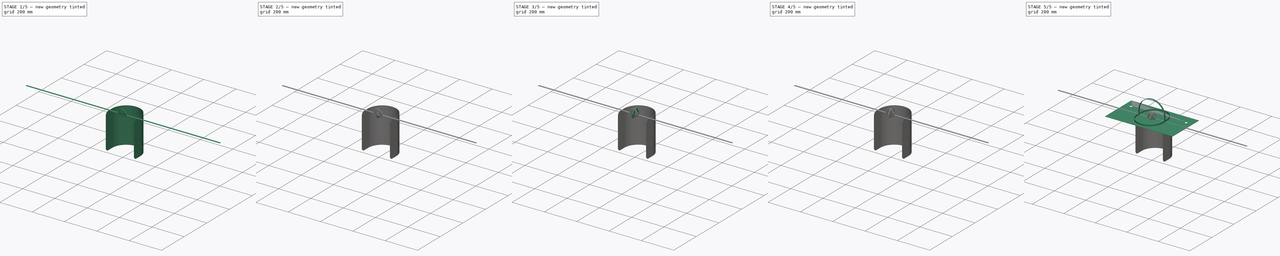
[diagram: build sequence overview — one tinted view per stage of 5, left to right]
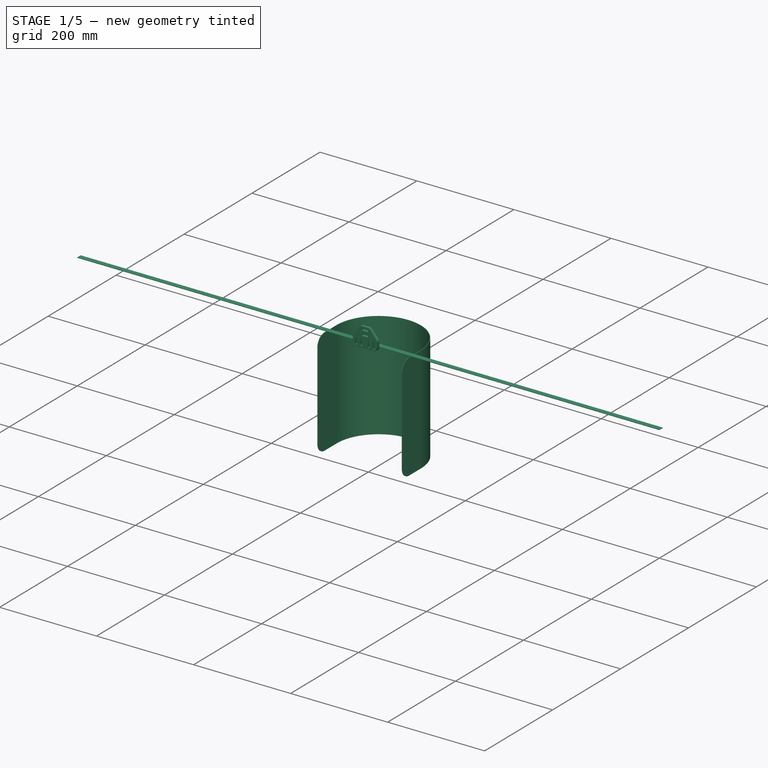
[diagram: stage 1 of 5 — iso view after this stage's code; geometry added in this stage tinted green]
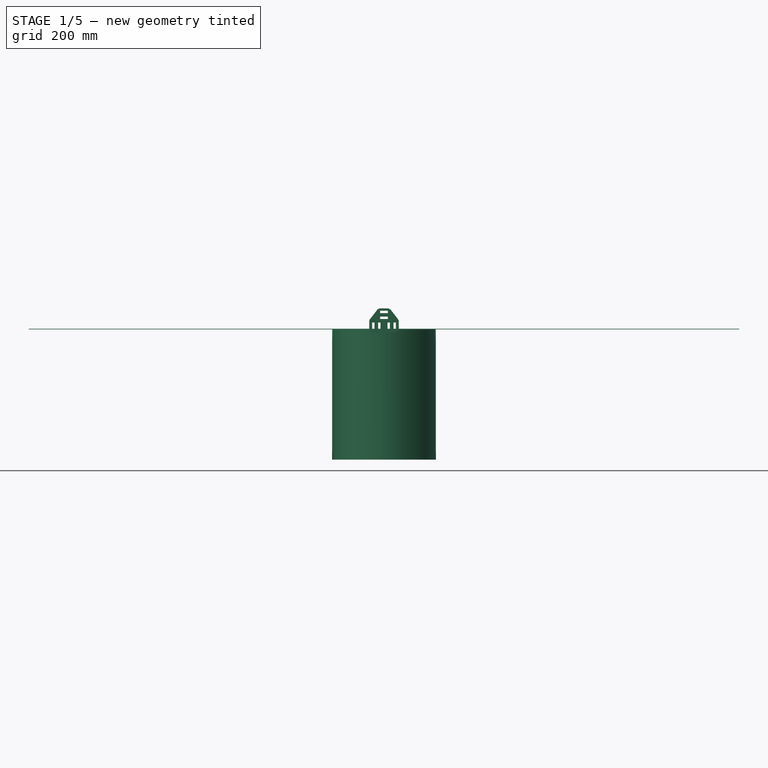
[diagram: stage 1 of 5 — front view after this stage's code; geometry added in this stage tinted green]
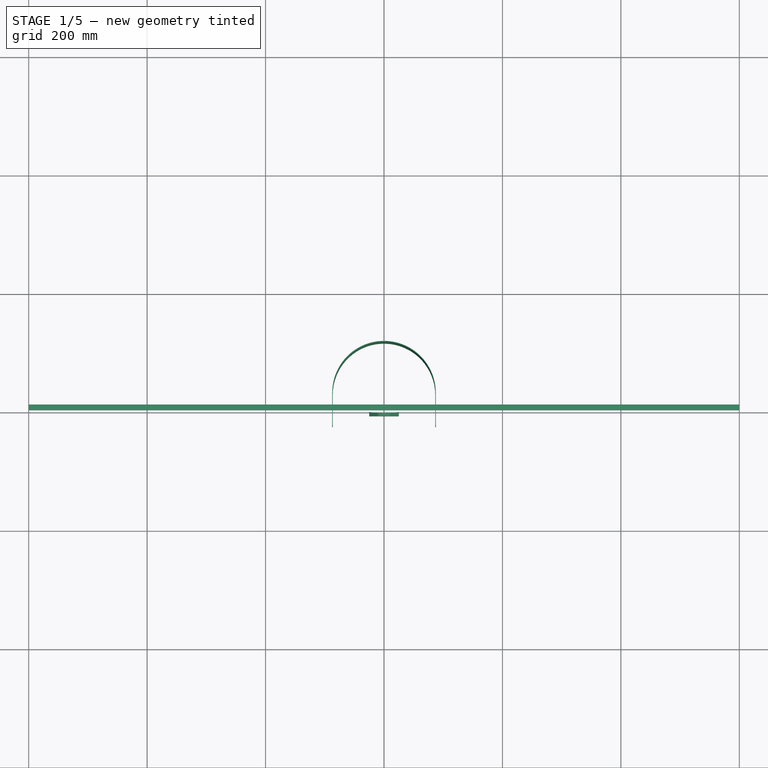
[diagram: stage 1 of 5 — top view after this stage's code; geometry added in this stage tinted green]
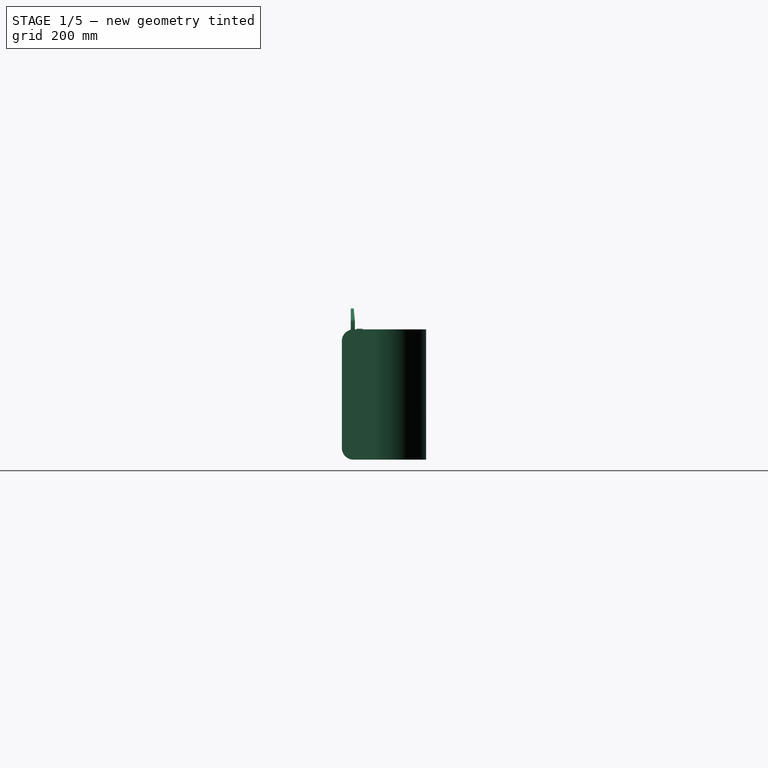
[diagram: stage 1 of 5 — right view after this stage's code; geometry added in this stage tinted green]
FCSTD DOCUMENT  (FreeCAD 0.18.4R)
Label: 3DVisera
License: All rights reserved
LicenseURL: http://en.wikipedia.org/wiki/All_rights_reserved
objects: Sketcher::SketchObject×20, PartDesign::Fillet×12, PartDesign::Pocket×9, PartDesign::Pad×8, PartDesign::Body×7, PartDesign::Revolution×1, PartDesign::Groove×1, PartDesign::Mirrored×1
note: 78 computed .brp shape members not serialized (recipe doc carries the construction recipe); baked Part::Feature solids carry a one-line shape summary decoded from their .brp

FEATURE [Sketcher::SketchObject] Sketch003
  MapMode = 5
  Support = -> [XY_Plane001]
  sketch-geometry (15):
    g0: LineSegment StartX=-86.5 StartY=0 StartZ=0 EndX=-86.5 EndY=30 EndZ=0
    g1: LineSegment [constr] StartX=-86.5 StartY=30 StartZ=0 EndX=86.5 EndY=30 EndZ=0
    g2: LineSegment StartX=86.5 StartY=30 StartZ=0 EndX=86.5 EndY=0 EndZ=0
    g3: LineSegment [constr] StartX=86.5 StartY=0 StartZ=0 EndX=87.5 EndY=8.62794e-06 EndZ=0
    g4: LineSegment StartX=87.5 StartY=8.62794e-06 StartZ=0 EndX=87.5 EndY=30 EndZ=0
    g5: LineSegment [constr] StartX=-86.5 StartY=0 StartZ=0 EndX=-87.5 EndY=0 EndZ=0
    g6: LineSegment StartX=-87.5 StartY=0 StartZ=0 EndX=-87.5 EndY=30 EndZ=0
    g7: ArcOfCircle CenterX=-5.6e-15 CenterY=30 CenterZ=0 NormalX=0 NormalY=0 NormalZ=1 AngleXU=0 Radius=86.5 StartAngle=0 EndAngle=3.14159
    g8: ArcOfCircle CenterX=-5.6e-15 CenterY=30 CenterZ=0 NormalX=0 NormalY=0 NormalZ=1 AngleXU=0 Radius=87.5 StartAngle=9.86051e-08 EndAngle=3.14159
    g9: LineSegment StartX=-87.5 StartY=0 StartZ=0 EndX=-87.5 EndY=-25 EndZ=0
    g10: LineSegment StartX=-87.5 StartY=-25 StartZ=0 EndX=-86.5 EndY=-25 EndZ=0
    g11: LineSegment StartX=-86.5 StartY=-25 StartZ=0 EndX=-86.5 EndY=0 EndZ=0
    g12: LineSegment StartX=86.5 StartY=0 StartZ=0 EndX=86.5 EndY=-25 EndZ=0
    g13: LineSegment StartX=86.5 StartY=-25 StartZ=0 EndX=87.5 EndY=-25 EndZ=0
    g14: LineSegment StartX=87.5 StartY=-25 StartZ=0 EndX=87.5 EndY=8.62794e-06 EndZ=0
  constraints (41):
    c: PointOnObject(g0,g-1)
    c: Vertical(g0)
    c: Coincident(g0,g1)
    c: Coincident(g1,g2)
    c: Coincident(g2,g3)
    c: Coincident(g3,g4)
    c: Vertical(g4)
    c: Coincident(g0,g5)
    c: PointOnObject(g5,g-1)
    c: Coincident(g5,g6)
    c: Vertical(g6)
    c: Symmetric(g0,g2,g-2)
    c: Symmetric(g2,g0,g-2)
    c: DistanceX(g5,g5) = 1
    c: Equal(g3,g5)
    c: Equal(g4,g2)
    c: Equal(g6,g0)
    c: Coincident(g8,g4)
    c: Coincident(g8,g6)
    c: Coincident(g8,g7)
    c: DistanceY(g4) = 30
    c: Coincident(g6,g9)
    c: Vertical(g9)
    c: Coincident(g9,g10)
    c: Horizontal(g10)
    c: Coincident(g10,g11)
    c: Coincident(g11,g0)
    c: Vertical(g11)
    c: Coincident(g2,g12)
    c: Vertical(g12)
    c: Coincident(g12,g13)
    c: Horizontal(g13)
    c: Coincident(g13,g14)
    c: Coincident(g14,g4)
    c: Vertical(g14)
    c: Equal(g14,g9)
    c: DistanceY(g14,g14) = 25
    c: DistanceX(g12) = 86.5
    c: Distance(g6,g4) = 175
    c: Tangent(g7,g0) = 1.5708
    c: Coincident(g2,g7)
FEATURE [PartDesign::Pad] Pad003
  Length = 220
  Length2 = 100
  Profile = -> Sketch003
  Reversed = true
  Type = 0
FEATURE [PartDesign::Body] Body010  label="Tuerca_Visera"
  Group = -> [Sketch031,Revolution,Sketch032,Pocket011,Sketch033,Pocket012,Sketch034,Groove001003,Fillet008,Sketch047,Pocket017,Fillet013,Fillet014]
  Origin = -> Origin010
  Placement = pos=(93,0,10) rot=(0,0,1;0rad)
  Tip = -> Fillet014
FEATURE [Sketcher::SketchObject] Sketch054
  MapMode = 5
  Placement = pos=(0,0,0) rot=(1,0,0;1.5708rad)
  Support = -> [XZ_Plane016]
  sketch-geometry (31):
    g0: LineSegment StartX=-20 StartY=11.5 StartZ=0 EndX=-16 EndY=11.5 EndZ=0
    g1: LineSegment StartX=-16 StartY=11.5 StartZ=0 EndX=-16 EndY=-1.5 EndZ=0
    g2: LineSegment StartX=-16 StartY=-1.5 StartZ=0 EndX=-20 EndY=-1.5 EndZ=0
    g3: LineSegment StartX=-20 StartY=-1.5 StartZ=0 EndX=-20 EndY=11.5 EndZ=0
    g4: LineSegment StartX=-10 StartY=-1.5 StartZ=0 EndX=-6 EndY=-1.5 EndZ=0
    g5: LineSegment StartX=-6 StartY=-1.5 StartZ=0 EndX=-6 EndY=11.5 EndZ=0
    g6: LineSegment StartX=-6 StartY=11.5 StartZ=0 EndX=-10 EndY=11.5 EndZ=0
    g7: LineSegment StartX=-10 StartY=11.5 StartZ=0 EndX=-10 EndY=-1.5 EndZ=0
    g8: LineSegment StartX=6 StartY=-1.5 StartZ=0 EndX=10 EndY=-1.5 EndZ=0
    g9: LineSegment StartX=10 StartY=-1.5 StartZ=0 EndX=10 EndY=11.5 EndZ=0
    g10: LineSegment StartX=10 StartY=11.5 StartZ=0 EndX=6 EndY=11.5 EndZ=0
    g11: LineSegment StartX=6 StartY=11.5 StartZ=0 EndX=6 EndY=-1.5 EndZ=0
    g12: LineSegment StartX=16 StartY=-1.5 StartZ=0 EndX=20 EndY=-1.5 EndZ=0
    g13: LineSegment StartX=20 StartY=-1.5 StartZ=0 EndX=20 EndY=11.5 EndZ=0
    g14: LineSegment StartX=20 StartY=11.5 StartZ=0 EndX=16 EndY=11.5 EndZ=0
    g15: LineSegment StartX=16 StartY=11.5 StartZ=0 EndX=16 EndY=-1.5 EndZ=0
    g16: LineSegment StartX=-6.5 StartY=17.5 StartZ=0 EndX=6.5 EndY=17.5 EndZ=0
    g17: LineSegment StartX=6.5 StartY=17.5 StartZ=0 EndX=6.5 EndY=21.5 EndZ=0
    g18: LineSegment StartX=6.5 StartY=21.5 StartZ=0 EndX=-6.5 EndY=21.5 EndZ=0
    g19: LineSegment StartX=-6.5 StartY=21.5 StartZ=0 EndX=-6.5 EndY=17.5 EndZ=0
    g20: LineSegment StartX=-6.5 StartY=27.5 StartZ=0 EndX=6.5 EndY=27.5 EndZ=0
    g21: LineSegment StartX=6.5 StartY=27.5 StartZ=0 EndX=6.5 EndY=31.5 EndZ=0
    g22: LineSegment StartX=6.5 StartY=31.5 StartZ=0 EndX=-6.5 EndY=31.5 EndZ=0
    g23: LineSegment StartX=-6.5 StartY=31.5 StartZ=0 EndX=-6.5 EndY=27.5 EndZ=0
    g24: LineSegment [constr] StartX=-39.4607 StartY=5 StartZ=0 EndX=48.8437 EndY=5 EndZ=0
    g25: LineSegment StartX=-25 StartY=15.5 StartZ=0 EndX=-9.5 EndY=35.5 EndZ=0
    g26: LineSegment StartX=-9.5 StartY=35.5 StartZ=0 EndX=9.5 EndY=35.5 EndZ=0
    g27: LineSegment StartX=9.5 StartY=35.5 StartZ=0 EndX=25 EndY=15.5 EndZ=0
    g28: LineSegment StartX=25 StartY=15.5 StartZ=0 EndX=25 EndY=-5.5 EndZ=0
    g29: LineSegment StartX=25 StartY=-5.5 StartZ=0 EndX=-25 EndY=-5.5 EndZ=0
    g30: LineSegment StartX=-25 StartY=-5.5 StartZ=0 EndX=-25 EndY=15.5 EndZ=0
  constraints (82):
    c: Coincident(g0,g1)
    c: Coincident(g1,g2)
    c: Coincident(g2,g3)
    c: Coincident(g3,g0)
    c: Horizontal(g0)
    c: Horizontal(g2)
    c: Vertical(g1)
    c: Vertical(g3)
    c: Coincident(g4,g5)
    c: Coincident(g5,g6)
    c: Coincident(g6,g7)
    c: Coincident(g7,g4)
    c: Horizontal(g4)
    c: Horizontal(g6)
    c: Vertical(g7)
    c: Coincident(g8,g9)
    c: Coincident(g9,g10)
    c: Coincident(g10,g11)
    c: Coincident(g11,g8)
    c: Horizontal(g8)
    c: Vertical(g11)
    c: Coincident(g12,g13)
    c: Coincident(g13,g14)
    c: Coincident(g14,g15)
    c: Coincident(g15,g12)
    c: Horizontal(g12)
    c: Vertical(g15)
    c: Coincident(g16,g17)
    c: Coincident(g17,g18)
    c: Coincident(g18,g19)
    c: Coincident(g19,g16)
    c: Horizontal(g18)
    c: Vertical(g17)
    c: Vertical(g19)
    c: Coincident(g20,g21)
    c: Coincident(g21,g22)
    c: Coincident(g22,g23)
    c: Coincident(g23,g20)
    c: Horizontal(g22)
    c: Vertical(g21)
    c: Vertical(g23)
    c: Equal(g15,g9)
    c: Equal(g9,g5)
    c: Equal(g5,g1)
    c: Equal(g16,g20)
    c: Equal(g20,g9)
    c: DistanceY(g24) = 5
    c: Symmetric(g12,g13,g24)
    c: Symmetric(g9,g8,g24)
    c: Symmetric(g4,g5,g24)
    c: Symmetric(g0,g1,g24)
    c: Symmetric(g16,g16,g-2)
    c: Symmetric(g20,g20,g-2)
    c: Equal(g23,g19)
    c: Equal(g19,g0)
    c: Equal(g0,g6)
    c: Equal(g6,g10)
    c: Equal(g10,g14)
    c: DistanceX(g14,g14) = 4
    c: Symmetric(g10,g5,g-2)
    c: Symmetric(g14,g0,g-2)
    c: DistanceX(g10) = 6
    c: DistanceX(g9,g14) = 6
    c: DistanceY(g13,g13) = 13
    c: DistanceY(g17,g20) = 6
    c: DistanceY(g10,g16) = 6
    c: Coincident(g25,g26)
    c: Coincident(g26,g27)
    c: Coincident(g27,g28)
    c: Vertical(g28)
    c: Coincident(g28,g29)
    c: Horizontal(g29)
    c: Coincident(g29,g30)
    c: Vertical(g30)
    c: Coincident(g25,g30)
    c: Symmetric(g25,g27,g-2)
    c: DistanceX(g13,g27) = 5
    c: DistanceY(g13,g27) = 4
    c: Symmetric(g26,g25,g-2)
    c: DistanceY(g21,g26) = 4
    c: DistanceX(g21,g26) = 3
    c: DistanceY(g28,g12) = 4
FEATURE [PartDesign::Pad] Pad019
  Length = 10
  Length2 = 100
  Placement = pos=(0,0,0) rot=(1,0,0;1.5708rad)
  Profile = -> Sketch054
  Type = 0
FEATURE [Sketcher::SketchObject] Sketch055
  MapMode = 5
  Placement = pos=(0,1.56e-14,35.5) rot=(0,0,1;3.14159rad)
  Support = -> [Pad019]
  sketch-geometry (2):
    g0: Circle CenterX=0 CenterY=-145 CenterZ=0 NormalX=0 NormalY=0 NormalZ=1 AngleXU=0 Radius=150
    g1: LineSegment [constr] StartX=-36.6681 StartY=5 StartZ=0 EndX=40.7279 EndY=5 EndZ=0
  constraints (5):
    c: PointOnObject(g0,g-2)
    c: Radius(g0) = 150
    c: Horizontal(g1)
    c: Tangent(g1,g0)
    c: DistanceY(g1) = 5
FEATURE [PartDesign::Pocket] Pocket023
  BaseFeature = -> Pad019
  Length = 5
  Length2 = 100
  Placement = pos=(0,0,0) rot=(1,0,0;1.5708rad)
  Profile = -> Sketch055
  Type = 1
FEATURE [PartDesign::Fillet] Fillet020  label="Fillet021"
  Base = -> Pocket023 [Edge34,Edge2,Edge65,Edge66,Edge64,Edge4]
  BaseFeature = -> Pocket023
  Placement = pos=(0,0,0) rot=(1,0,0;1.5708rad)
  Radius = 8
FEATURE [Sketcher::SketchObject] Sketch056
  ExternalGeometry = -> [Fillet022]
  MapMode = 5
  Placement = pos=(0,-10,2.2e-15) rot=(1,0,0;1.5708rad)
  Support = -> [Fillet022]
  sketch-geometry (2):
    g0: Circle CenterX=38.9284 CenterY=42.2335 CenterZ=0 NormalX=0 NormalY=0 NormalZ=1 AngleXU=0 Radius=28.6336
    g1: Circle CenterX=-38.9284 CenterY=42.2335 CenterZ=0 NormalX=0 NormalY=0 NormalZ=1 AngleXU=0 Radius=32.7625
  constraints (1):
    c: Symmetric(g1,g0,g-2)
FEATURE [PartDesign::Body] Body015  label="hebilla_nuca_cinta"
  Group = -> [Sketch054,Pad019,Sketch055,Pocket023,Fillet020,Fillet021,Fillet022,Sketch056]
  Origin = -> Origin015
  Placement = pos=(0,-95.8,0) rot=(0,0,1;0rad)
  Tip = -> Fillet022
FEATURE [PartDesign::Fillet] Fillet
  Base = -> Pad003 [Edge24,Edge6,Edge7,Edge25]
  BaseFeature = -> Pad003
  Radius = 20
FEATURE [PartDesign::Body] Body001  label="visera"
  Group = -> [Sketch003,Pad003,Fillet]
  Origin = -> Origin001
  Placement = pos=(0,0,42) rot=(0,0,1;0rad)
  Tip = -> Fillet
FEATURE [Sketcher::SketchObject] Sketch057
  MapMode = 5
  Support = -> [XY_Plane016]
  sketch-geometry (4):
    g0: LineSegment StartX=-600 StartY=0 StartZ=0 EndX=600 EndY=0 EndZ=0
    g1: LineSegment StartX=600 StartY=0 StartZ=0 EndX=600 EndY=10 EndZ=0
    g2: LineSegment StartX=600 StartY=10 StartZ=0 EndX=-600 EndY=10 EndZ=0
    g3: LineSegment StartX=-600 StartY=10 StartZ=0 EndX=-600 EndY=0 EndZ=0
  constraints (11):
    c: Coincident(g0,g1)
    c: Coincident(g1,g2)
    c: Coincident(g2,g3)
    c: Coincident(g3,g0)
    c: Horizontal(g0)
    c: Vertical(g1)
    c: Vertical(g3)
    c: PointOnObject(g0,g-1)
    c: DistanceY(g1,g1) = 10
    c: Symmetric(g1,g2,g-2)
    c: DistanceX(g2,g2) = 1200
FEATURE [PartDesign::Pad] Pad020
  Length = 1
  Length2 = 100
  Profile = -> Sketch057
  Type = 0
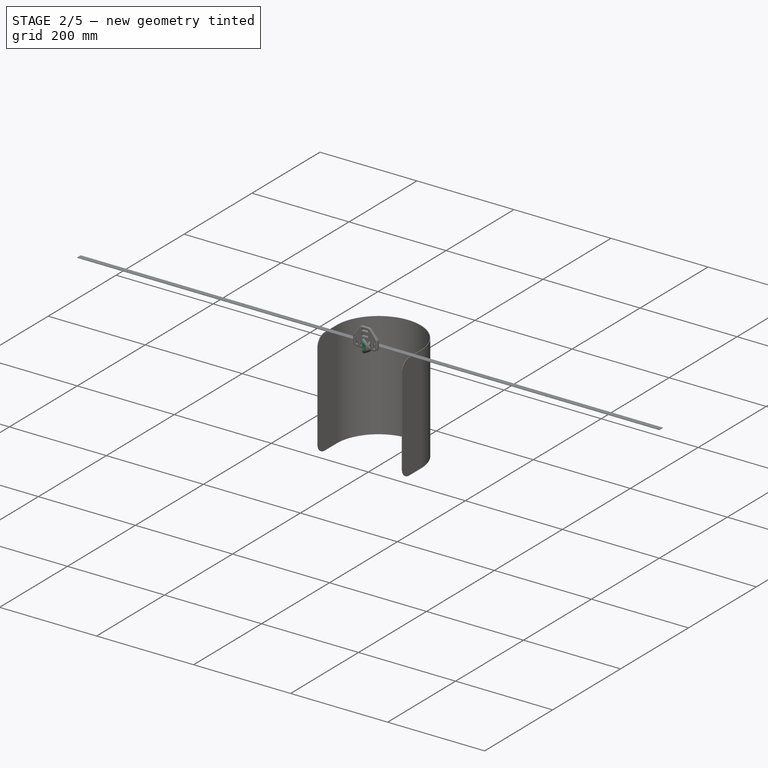
[diagram: stage 2 of 5 — iso view after this stage's code; geometry added in this stage tinted green]
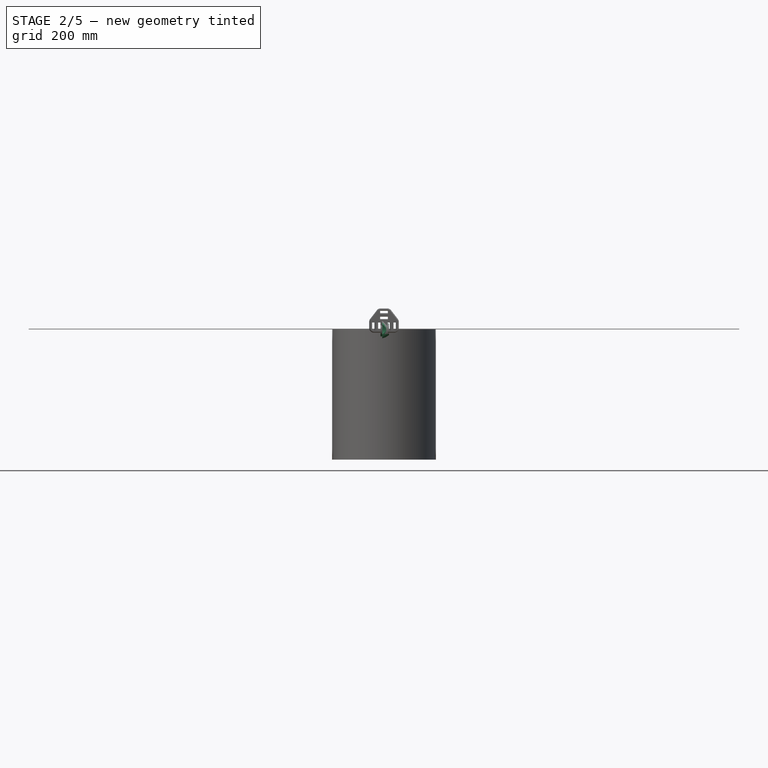
[diagram: stage 2 of 5 — front view after this stage's code; geometry added in this stage tinted green]
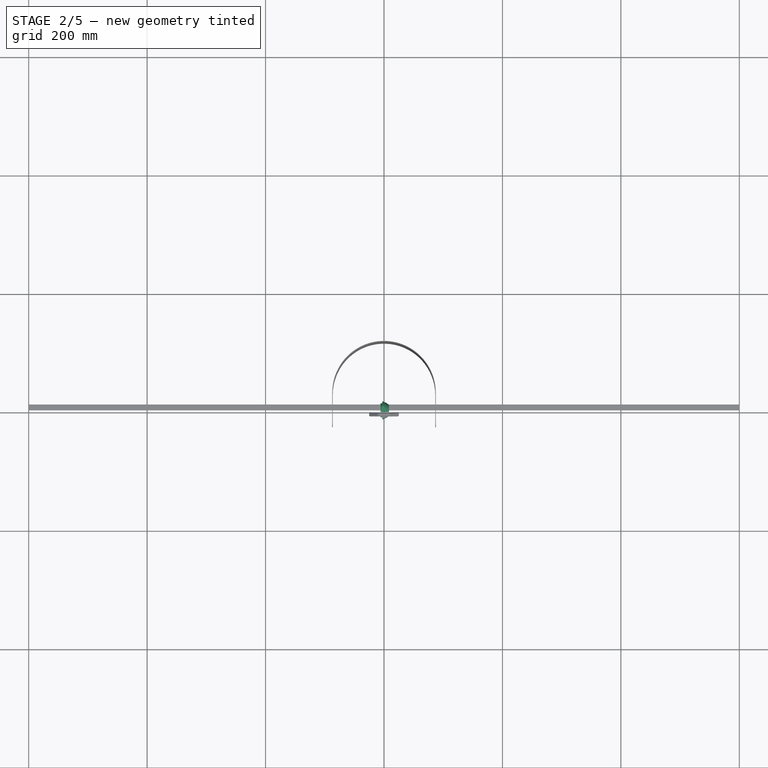
[diagram: stage 2 of 5 — top view after this stage's code; geometry added in this stage tinted green]
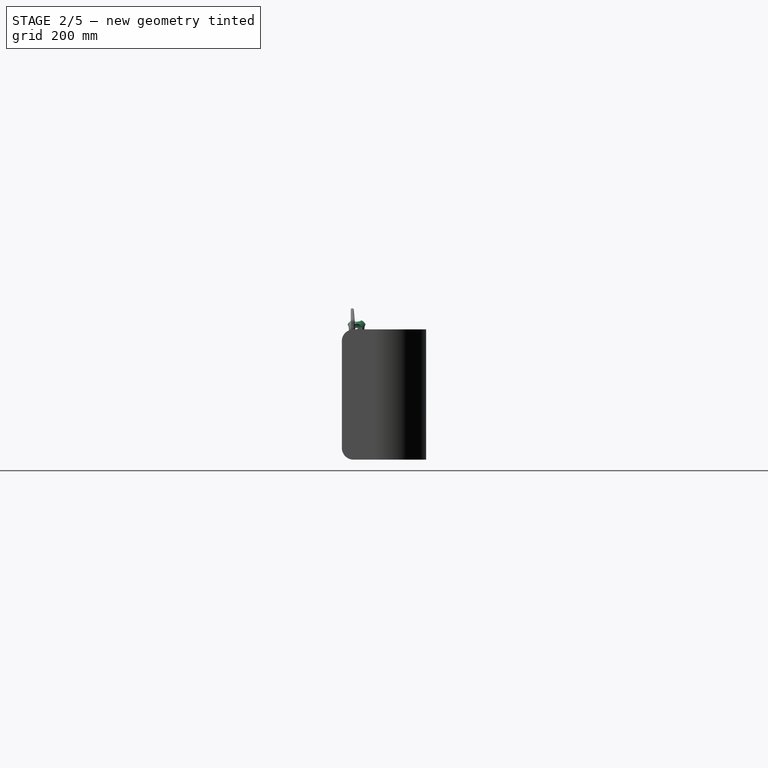
[diagram: stage 2 of 5 — right view after this stage's code; geometry added in this stage tinted green]
FEATURE [Sketcher::SketchObject] Sketch025
  MapMode = 5
  Placement = pos=(0,0,0) rot=(0.57735,0.57735,0.57735;2.0944rad)
  Support = -> [YZ_Plane009]
  sketch-geometry (10):
    g0: LineSegment [constr] StartX=-70.2533 StartY=5 StartZ=0 EndX=70.2533 EndY=5 EndZ=0
    g1: LineSegment [constr] StartX=70.2533 StartY=5 StartZ=0 EndX=70.2533 EndY=-5 EndZ=0
    g2: LineSegment [constr] StartX=70.2533 StartY=-5 StartZ=0 EndX=-70.2533 EndY=-5 EndZ=0
    g3: LineSegment [constr] StartX=-70.2533 StartY=-5 StartZ=0 EndX=-70.2533 EndY=5 EndZ=0
    g4: LineSegment StartX=-27.5 StartY=-10 StartZ=0 EndX=-27.5 EndY=10 EndZ=0
    g5: LineSegment StartX=-27.5 StartY=10 StartZ=0 EndX=-9 EndY=35 EndZ=0
    g6: LineSegment StartX=-9 StartY=35 StartZ=0 EndX=9 EndY=35 EndZ=0
    g7: LineSegment StartX=9 StartY=35 StartZ=0 EndX=27.5 EndY=10 EndZ=0
    g8: LineSegment StartX=27.5 StartY=10 StartZ=0 EndX=27.5 EndY=-10 EndZ=0
    g9: LineSegment StartX=27.5 StartY=-10 StartZ=0 EndX=-27.5 EndY=-10 EndZ=0
  constraints (24):
    c: Coincident(g0,g1)
    c: Coincident(g1,g2)
    c: Coincident(g2,g3)
    c: Coincident(g3,g0)
    c: Horizontal(g0)
    c: Vertical(g3)
    c: Symmetric(g1,g0,g-1)
    c: DistanceY(g1,g1) = 10
    c: Symmetric(g1,g2,g-2)
    c: Vertical(g4)
    c: Coincident(g8,g9)
    c: Horizontal(g9)
    c: Coincident(g4,g9)
    c: Symmetric(g8,g4,g-2)
    c: Symmetric(g6,g6,g-2)
    c: Symmetric(g7,g5,g-2)
    c: DistanceY(g8,g8) = 20
    c: DistanceX(g6,g6) = 18
    c: DistanceX(g9,g9) = 55
    c: DistanceY(g6) = 35
    c: Symmetric(g8,g8,g-1)
    c: Coincident(g7,g8)
    c: Coincident(g5,g4)
    c: Coincident(g7,g6)
FEATURE [PartDesign::Pad] Pad009
  Length = 6
  Length2 = 100
  Placement = pos=(0,0,0) rot=(0.57735,0.57735,0.57735;2.0944rad)
  Profile = -> Sketch025
  Type = 0
FEATURE [Sketcher::SketchObject] Sketch031
  MapMode = 5
  Placement = pos=(0,0,0) rot=(1,0,0;1.5708rad)
  Support = -> [XZ_Plane011]
  sketch-geometry (10):
    g0: LineSegment StartX=0 StartY=2.6 StartZ=0 EndX=0 EndY=6.8 EndZ=0
    g1: LineSegment StartX=0 StartY=6.8 StartZ=0 EndX=-6 EndY=6.8 EndZ=0
    g2: LineSegment StartX=-6 StartY=6.8 StartZ=0 EndX=-6 EndY=11.8 EndZ=0
    g3: LineSegment StartX=-6 StartY=11.8 StartZ=0 EndX=-3 EndY=11.8 EndZ=0
    g4: LineSegment StartX=-3 StartY=11.8 StartZ=0 EndX=-3 EndY=18 EndZ=0
    g5: LineSegment StartX=-3 StartY=18 StartZ=0 EndX=9 EndY=18 EndZ=0
    g6: LineSegment StartX=9 StartY=18 StartZ=0 EndX=9 EndY=10 EndZ=0
    g7: LineSegment StartX=9 StartY=10 StartZ=0 EndX=6 EndY=7 EndZ=0
    g8: LineSegment StartX=6 StartY=7 StartZ=0 EndX=6 EndY=2.6 EndZ=0
    g9: LineSegment StartX=6 StartY=2.6 StartZ=0 EndX=0 EndY=2.6 EndZ=0
  constraints (30):
    c: PointOnObject(g0,g-2)
    c: Vertical(g0)
    c: Coincident(g0,g1)
    c: Coincident(g1,g2)
    c: Vertical(g2)
    c: Coincident(g2,g3)
    c: Horizontal(g3)
    c: Coincident(g3,g4)
    c: Coincident(g4,g5)
    c: Horizontal(g5)
    c: Coincident(g5,g6)
    c: Coincident(g6,g7)
    c: Coincident(g7,g8)
    c: Vertical(g8)
    c: Coincident(g8,g9)
    c: Coincident(g9,g0)
    c: Horizontal(g9)
    c: DistanceY(g8) = 2.6
    c: DistanceX(g1,g1) = 6
    c: Horizontal(g1)
    c: DistanceY(g2,g2) = 5
    c: DistanceX(g3,g3) = 3
    c: DistanceY(g4) = 18
    c: Vertical(g6)
    c: Angle(g7) = -2.35619
    c: DistanceX(g9,g9) = 6
    c: DistanceY(g6,g6) = 8
    c: DistanceY(g0) = 6.8
    c: DistanceX(g5) = 9
    c: Vertical(g4)
FEATURE [PartDesign::Revolution] Revolution
  Angle = 360
  Axis = (1,0,0)
  Base = (0,0,0)
  Placement = pos=(0,0,0) rot=(1,0,0;1.5708rad)
  Profile = -> Sketch031
  ReferenceAxis = -> Sketch031 [H_Axis]
FEATURE [Sketcher::SketchObject] Sketch032
  ExternalGeometry = -> [Revolution]
  MapMode = 5
  Placement = pos=(9,0,0) rot=(0.707107,0,0.707107;3.14159rad)
  Support = -> [Revolution]
  sketch-geometry (17):
    g0: ArcOfCircle CenterX=0 CenterY=35 CenterZ=0 NormalX=0 NormalY=0 NormalZ=1 AngleXU=0 Radius=17 StartAngle=1e-16 EndAngle=3.14159
    g1: ArcOfCircle CenterX=-3e-16 CenterY=30 CenterZ=0 NormalX=0 NormalY=0 NormalZ=1 AngleXU=0 Radius=17 StartAngle=3.14159 EndAngle=6.28319
    g2: LineSegment StartX=-17 StartY=35 StartZ=0 EndX=-17 EndY=30 EndZ=0
    g3: LineSegment StartX=17 StartY=35 StartZ=0 EndX=17 EndY=30 EndZ=0
    g4: ArcOfCircle CenterX=30 CenterY=0 CenterZ=0 NormalX=0 NormalY=0 NormalZ=1 AngleXU=0 Radius=17 StartAngle=1.5708 EndAngle=4.71239
    g5: ArcOfCircle CenterX=35 CenterY=-3e-16 CenterZ=0 NormalX=0 NormalY=0 NormalZ=1 AngleXU=0 Radius=17 StartAngle=4.71239 EndAngle=7.85398
    g6: LineSegment StartX=30 StartY=-17 StartZ=0 EndX=35 EndY=-17 EndZ=0
    g7: LineSegment StartX=30 StartY=17 StartZ=0 EndX=35 EndY=17 EndZ=0
    g8: ArcOfCircle CenterX=0 CenterY=-30 CenterZ=0 NormalX=0 NormalY=0 NormalZ=1 AngleXU=0 Radius=17 StartAngle=1e-16 EndAngle=3.14159
    g9: ArcOfCircle CenterX=4e-16 CenterY=-35 CenterZ=0 NormalX=0 NormalY=0 NormalZ=1 AngleXU=0 Radius=17 StartAngle=3.14159 EndAngle=6.28319
    g10: LineSegment StartX=-17 StartY=-30 StartZ=0 EndX=-17 EndY=-35 EndZ=0
    g11: LineSegment StartX=17 StartY=-30 StartZ=0 EndX=17 EndY=-35 EndZ=0
    g12: ArcOfCircle CenterX=-30 CenterY=0 CenterZ=0 NormalX=0 NormalY=0 NormalZ=1 AngleXU=0 Radius=17 StartAngle=4.71239 EndAngle=7.85398
    g13: ArcOfCircle CenterX=-35 CenterY=-8e-16 CenterZ=0 NormalX=0 NormalY=0 NormalZ=1 AngleXU=0 Radius=17 StartAngle=1.5708 EndAngle=4.71239
    g14: LineSegment StartX=-30 StartY=17 StartZ=0 EndX=-35 EndY=17 EndZ=0
    g15: LineSegment StartX=-30 StartY=-17 StartZ=0 EndX=-35 EndY=-17 EndZ=0
    g16: Circle [constr] CenterX=0 CenterY=0 CenterZ=0 NormalX=0 NormalY=0 NormalZ=1 AngleXU=0 Radius=30
  constraints (42):
    c: Tangent(g0,g3) = 1.5708
    c: Tangent(g0,g2) = -1.5708
    c: Tangent(g2,g1) = -1.5708
    c: Tangent(g3,g1) = 1.5708
    c: Vertical(g2)
    c: Equal(g0,g1)
    c: PointOnObject(g0,g-2)
    c: Tangent(g4,g7) = 1.5708
    c: Tangent(g4,g6) = -1.5708
    c: Tangent(g6,g5) = -1.5708
    c: Tangent(g7,g5) = 1.5708
    c: Horizontal(g6)
    c: Equal(g4,g5)
    c: PointOnObject(g4,g-1)
    c: Tangent(g8,g11) = 1.5708
    c: Tangent(g8,g10) = -1.5708
    c: Tangent(g10,g9) = -1.5708
    c: Tangent(g11,g9) = 1.5708
    c: Vertical(g10)
    c: Equal(g8,g9)
    c: PointOnObject(g8,g-2)
    c: Tangent(g12,g15) = 1.5708
    c: Tangent(g12,g14) = -1.5708
    c: Tangent(g14,g13) = -1.5708
    c: Tangent(g15,g13) = 1.5708
    c: Horizontal(g14)
    c: Equal(g12,g13)
    c: PointOnObject(g12,g-1)
    c: Coincident(g16,g-1)
    c: PointOnObject(g1,g16)
    c: PointOnObject(g4,g16)
    c: PointOnObject(g12,g16)
    c: PointOnObject(g8,g16)
    c: Equal(g14,g2)
    c: Equal(g2,g7)
    c: Equal(g7,g11)
    c: Equal(g5,g0)
    c: Equal(g0,g13)
    c: Equal(g13,g9)
    c: DistanceY(g3,g3) = 5
    c: Radius(g16) = 30
    c: Radius(g4) = 17
FEATURE [PartDesign::Pocket] Pocket011
  BaseFeature = -> Revolution
  Length = 5
  Length2 = 100
  Placement = pos=(0,0,0) rot=(1,0,0;1.5708rad)
  Profile = -> Sketch032
  Type = 1
FEATURE [Sketcher::SketchObject] Sketch033
  MapMode = 5
  Placement = pos=(6,0,0) rot=(0.707107,0,0.707107;3.14159rad)
  Support = -> [Pocket011]
  sketch-geometry (7):
    g0: LineSegment StartX=6e-16 StartY=4.65344 StartZ=0 EndX=-4.03 EndY=2.32672 EndZ=0
    g1: LineSegment StartX=-4.03 StartY=2.32672 StartZ=0 EndX=-4.03 EndY=-2.32672 EndZ=0
    g2: LineSegment StartX=-4.03 StartY=-2.32672 StartZ=0 EndX=-9e-16 EndY=-4.65344 EndZ=0
    g3: LineSegment StartX=-5e-16 StartY=-4.65344 StartZ=0 EndX=4.03 EndY=-2.32672 EndZ=0
    g4: LineSegment StartX=4.03 StartY=-2.32672 StartZ=0 EndX=4.03 EndY=2.32672 EndZ=0
    g5: LineSegment StartX=4.03 StartY=2.32672 StartZ=0 EndX=9e-16 EndY=4.65344 EndZ=0
    g6: Circle [constr] CenterX=0 CenterY=0 CenterZ=0 NormalX=0 NormalY=0 NormalZ=1 AngleXU=0 Radius=4.65344
  constraints (16):
    c: Coincident(g0,g1)
    c: Coincident(g1,g2)
    c: Coincident(g2,g3)
    c: Coincident(g3,g4)
    c: Coincident(g4,g5)
    c: Coincident(g5,g0)
    c: Equal(g0, g1-g5) x5
    c: PointOnObject(g0,g6)
    c: PointOnObject(g1,g6)
    c: PointOnObject(g2,g6)
    c: PointOnObject(g3,g6)
    c: PointOnObject(g4,g6)
    c: PointOnObject(g5,g6)
    c: Coincident(g6,g-1)
    c: Distance(g0,g3) = 8.06
    c: Vertical(g4)
FEATURE [PartDesign::Pocket] Pocket012
  BaseFeature = -> Pocket011
  Length = 4
  Length2 = 100
  Placement = pos=(0,0,0) rot=(1,0,0;1.5708rad)
  Profile = -> Sketch033
  Type = 0
FEATURE [Sketcher::SketchObject] Sketch034
  ExternalGeometry = -> [Pocket012]
  MapMode = 5
  Placement = pos=(0,0,0) rot=(1,0,0;1.5708rad)
  Support = -> [XZ_Plane011]
  sketch-geometry (4):
    g0: LineSegment StartX=11.7894 StartY=7.05574 StartZ=0 EndX=-5.55149 EndY=19.1979 EndZ=0
    g1: LineSegment StartX=-5.55149 StartY=19.1979 StartZ=0 EndX=-5.55149 EndY=26.3019 EndZ=0
    g2: LineSegment StartX=-5.55149 StartY=26.3019 StartZ=0 EndX=11.7894 EndY=26.3019 EndZ=0
    g3: LineSegment StartX=11.7894 StartY=26.3019 StartZ=0 EndX=11.7894 EndY=7.05574 EndZ=0
  constraints (9):
    c: Coincident(g0,g1)
    c: Vertical(g1)
    c: Coincident(g1,g2)
    c: Horizontal(g2)
    c: Coincident(g2,g3)
    c: Coincident(g3,g0)
    c: Vertical(g3)
    c: PointOnObject(g-3,g0)
    c: Angle(g0) = 2.53073
FEATURE [PartDesign::Groove] Groove001003
  Angle = 360
  Axis = (1,0,0)
  Base = (0,0,0)
  BaseFeature = -> Pocket012
  Placement = pos=(0,0,0) rot=(1,0,0;1.5708rad)
  Profile = -> Sketch034
  ReferenceAxis = -> X_Axis010
FEATURE [PartDesign::Fillet] Fillet021  label="Fillet022"
  Base = -> Fillet020 [Edge1,Edge4]
  BaseFeature = -> Fillet020
  Placement = pos=(0,0,0) rot=(1,0,0;1.5708rad)
  Radius = 2
FEATURE [PartDesign::Fillet] Fillet022  label="Fillet023"
  Base = -> Fillet021 [Edge35,Edge37,Edge39,Edge41,Edge54,Edge56,Edge50,Edge52,Edge47,Edge49,Edge43,Edge45,Edge89,Edge91,Edge73,Edge75,Edge69,Edge71,Edge88,Edge86,Edge84,Edge82,Edge80,Edge78]
  BaseFeature = -> Fillet021
  Placement = pos=(0,0,0) rot=(1,0,0;1.5708rad)
  Radius = 1.3
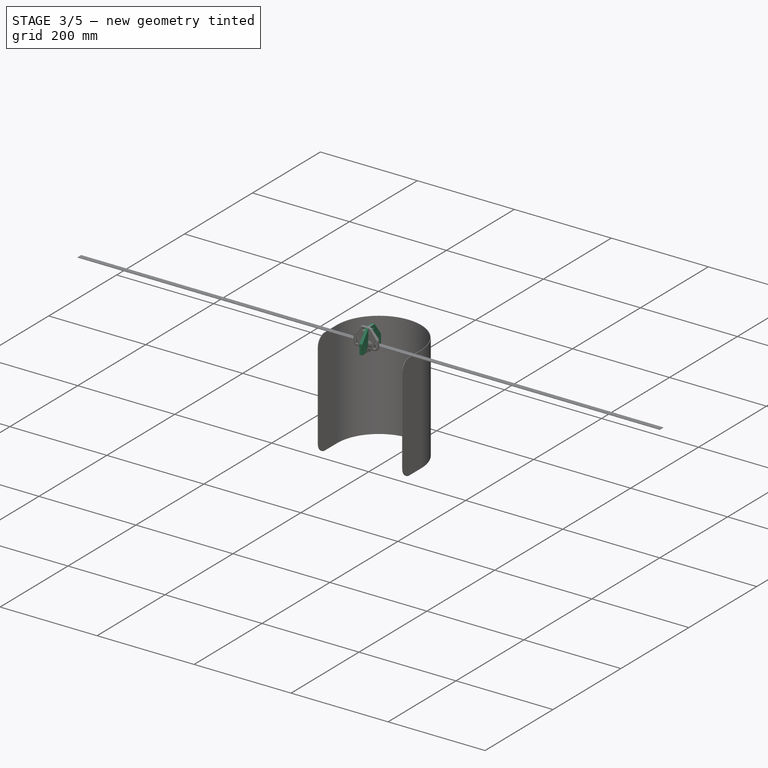
[diagram: stage 3 of 5 — iso view after this stage's code; geometry added in this stage tinted green]
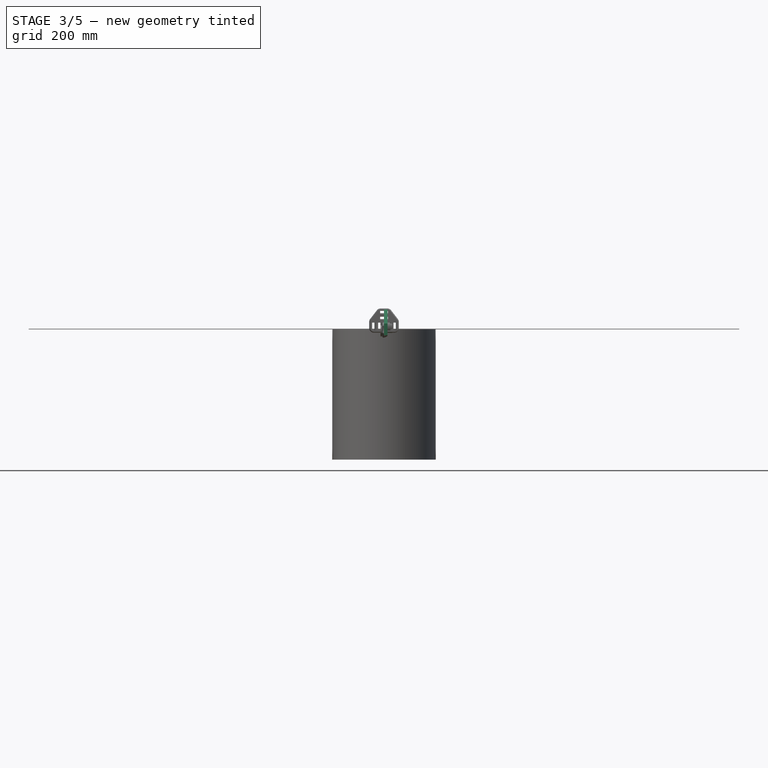
[diagram: stage 3 of 5 — front view after this stage's code; geometry added in this stage tinted green]
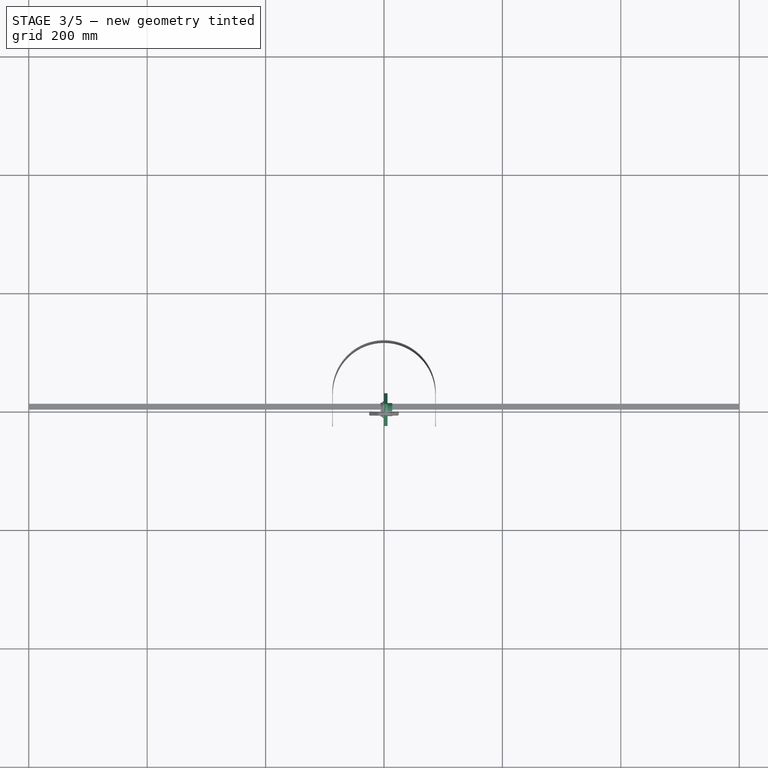
[diagram: stage 3 of 5 — top view after this stage's code; geometry added in this stage tinted green]
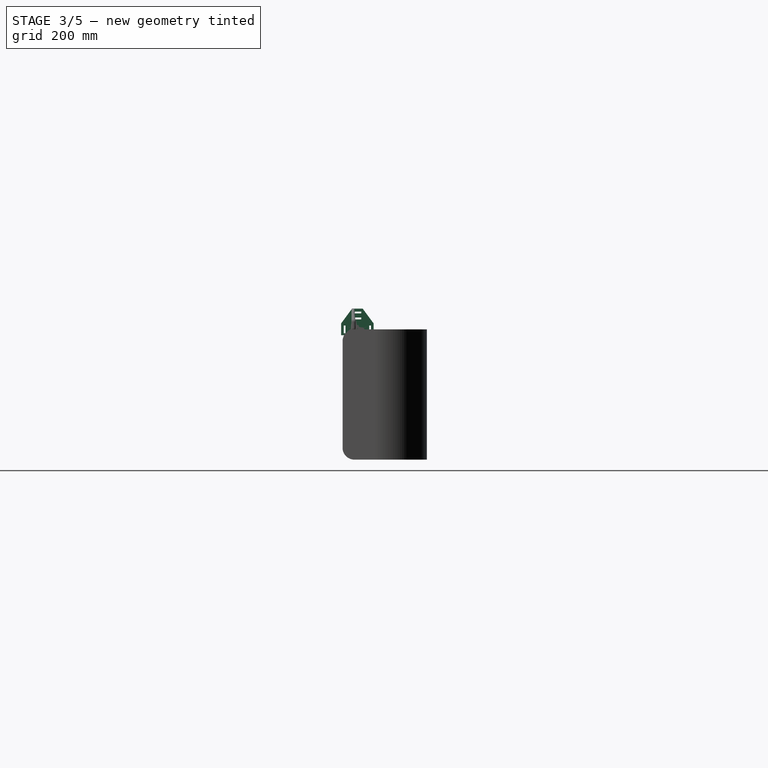
[diagram: stage 3 of 5 — right view after this stage's code; geometry added in this stage tinted green]
FEATURE [PartDesign::Fillet] Fillet008  label="Fillet009"
  Base = -> Groove001003 [Edge31,Edge33,Edge29,Edge35]
  BaseFeature = -> Groove001003
  Placement = pos=(0,0,0) rot=(1,0,0;1.5708rad)
  Radius = 2.2
FEATURE [PartDesign::Body] Body  label="Placa_PolicarbonatoVisera"
  Group = -> [Sketch,Pad]
  Origin = -> Origin
  Placement = pos=(0,346,-177) rot=(0,0,1;0rad)
  Tip = -> Pad
FEATURE [Sketcher::SketchObject] Sketch047
  MapMode = 5
  Placement = pos=(6,0,0) rot=(0.707107,0,0.707107;3.14159rad)
  Support = -> [Fillet008]
  sketch-geometry (1):
    g0: Circle CenterX=0 CenterY=0 CenterZ=0 NormalX=0 NormalY=0 NormalZ=1 AngleXU=0 Radius=24.3818
  constraints (1):
    c: Coincident(g0,g-1)
FEATURE [PartDesign::Pocket] Pocket017
  BaseFeature = -> Fillet008
  Length = 5
  Length2 = 100
  Placement = pos=(0,0,0) rot=(1,0,0;1.5708rad)
  Profile = -> Sketch047
  Reversed = true
  Type = 1
FEATURE [PartDesign::Fillet] Fillet013  label="Fillet014"
  Base = -> Pocket017 [Edge31]
  BaseFeature = -> Pocket017
  Placement = pos=(0,0,0) rot=(1,0,0;1.5708rad)
  Radius = 2
FEATURE [PartDesign::Fillet] Fillet014  label="Fillet015"
  Base = -> Fillet013 [Face5,Face3,Face8,Face9]
  BaseFeature = -> Fillet013
  Placement = pos=(0,0,0) rot=(1,0,0;1.5708rad)
  Radius = 2
FEATURE [PartDesign::Body] Body016  label="Tira_policarbonato_cinta"
  Group = -> [Sketch057,Pad020]
  Origin = -> Origin016
  Placement = pos=(0,210,-177) rot=(0,0,1;0rad)
  Tip = -> Pad020
FEATURE [PartDesign::Body] Body009  label="Hebilla_Lateral"
  Group = -> [Sketch025,Pad009,Sketch026,Pad010,Sketch027,Pocket007,Sketch028,Pocket008,Sketch029,Pocket009,Sketch030,Pocket010,Fillet004,Fillet005,Fillet006,Fillet007,Sketch046,Pocket016,Mirrored,Fillet012]
  Origin = -> Origin009
  Placement = pos=(79,0,5) rot=(0,0,1;0rad)
  Tip = -> Fillet012
FEATURE [Sketcher::SketchObject] Sketch026
  MapMode = 5
  Placement = pos=(6,-1.3e-15,1.3e-15) rot=(0.57735,0.57735,0.57735;2.0944rad)
  Support = -> [Pocket007]
  sketch-geometry (1):
    g0: Circle CenterX=0 CenterY=5 CenterZ=0 NormalX=0 NormalY=0 NormalZ=1 AngleXU=0 Radius=11
  constraints (3):
    c: PointOnObject(g0,g-2)
    c: DistanceY(g0) = 5
    c: Radius(g0) = 11
FEATURE [PartDesign::Pad] Pad010
  BaseFeature = -> Pad009
  Length = 8
  Length2 = 100
  Placement = pos=(0,0,0) rot=(0.57735,0.57735,0.57735;2.0944rad)
  Profile = -> Sketch026
  Type = 0
FEATURE [Sketcher::SketchObject] Sketch027
  ExternalGeometry = -> [Pad010]
  MapMode = 5
  Placement = pos=(6,-1.3e-15,1.3e-15) rot=(0.57735,0.57735,0.57735;2.0944rad)
  Support = -> [Pad010]
  sketch-geometry (24):
    g0: LineSegment StartX=-6.5 StartY=30 StartZ=0 EndX=6.5 EndY=30 EndZ=0
    g1: LineSegment StartX=6.5 StartY=30 StartZ=0 EndX=6.5 EndY=27 EndZ=0
    g2: LineSegment StartX=6.5 StartY=27 StartZ=0 EndX=-6.5 EndY=27 EndZ=0
    g3: LineSegment StartX=-6.5 StartY=27 StartZ=0 EndX=-6.5 EndY=30 EndZ=0
    g4: LineSegment StartX=-6.5 StartY=20 StartZ=0 EndX=6.5 EndY=20 EndZ=0
    g5: LineSegment StartX=6.5 StartY=20 StartZ=0 EndX=6.5 EndY=17 EndZ=0
    g6: LineSegment StartX=6.5 StartY=17 StartZ=0 EndX=-6.5 EndY=17 EndZ=0
    g7: LineSegment StartX=-6.5 StartY=17 StartZ=0 EndX=-6.5 EndY=20 EndZ=0
    g8: LineSegment StartX=-23 StartY=6.5 StartZ=0 EndX=-20 EndY=6.5 EndZ=0
    g9: LineSegment StartX=-20 StartY=6.5 StartZ=0 EndX=-20 EndY=-6.5 EndZ=0
    g10: LineSegment StartX=-20 StartY=-6.5 StartZ=0 EndX=-23 EndY=-6.5 EndZ=0
    g11: LineSegment StartX=-23 StartY=-6.5 StartZ=0 EndX=-23 EndY=6.5 EndZ=0
    g12: LineSegment [constr] StartX=-13 StartY=-6.5 StartZ=0 EndX=-10 EndY=-6.5 EndZ=0
    g13: LineSegment [constr] StartX=-10 StartY=-6.5 StartZ=0 EndX=-10 EndY=6.5 EndZ=0
    g14: LineSegment [constr] StartX=-10 StartY=6.5 StartZ=0 EndX=-13 EndY=6.5 EndZ=0
    g15: LineSegment [constr] StartX=-13 StartY=6.5 StartZ=0 EndX=-13 EndY=-6.5 EndZ=0
    g16: LineSegment [constr] StartX=10 StartY=6.5 StartZ=0 EndX=13 EndY=6.5 EndZ=0
    g17: LineSegment [constr] StartX=13 StartY=6.5 StartZ=0 EndX=13 EndY=-6.5 EndZ=0
    g18: LineSegment [constr] StartX=13 StartY=-6.5 StartZ=0 EndX=10 EndY=-6.5 EndZ=0
    g19: LineSegment [constr] StartX=10 StartY=-6.5 StartZ=0 EndX=10 EndY=6.5 EndZ=0
    g20: LineSegment StartX=20 StartY=-6.5 StartZ=0 EndX=23 EndY=-6.5 EndZ=0
    g21: LineSegment StartX=23 StartY=-6.5 StartZ=0 EndX=23 EndY=6.5 EndZ=0
    g22: LineSegment StartX=23 StartY=6.5 StartZ=0 EndX=20 EndY=6.5 EndZ=0
    g23: LineSegment StartX=20 StartY=6.5 StartZ=0 EndX=20 EndY=-6.5 EndZ=0
FEATURE [PartDesign::Pocket] Pocket007
  BaseFeature = -> Pad010
  Length = 5
  Length2 = 100
  Placement = pos=(0,0,0) rot=(0.57735,0.57735,0.57735;2.0944rad)
  Profile = -> Sketch027
  Type = 1
FEATURE [Sketcher::SketchObject] Sketch028
  ExternalGeometry = -> [Pocket007]
  MapMode = 5
  Placement = pos=(14,-9.1e-15,7.8e-15) rot=(0.57735,0.57735,0.57735;2.0944rad)
  Support = -> [Pocket007]
  sketch-geometry (1):
    g0: Circle CenterX=0 CenterY=5 CenterZ=0 NormalX=0 NormalY=0 NormalZ=1 AngleXU=0 Radius=2.5
  constraints (2):
    c: Coincident(g0,g-3)
    c: Radius(g0) = 2.5
FEATURE [PartDesign::Pocket] Pocket008
  BaseFeature = -> Pocket007
  Length = 5
  Length2 = 100
  Placement = pos=(0,0,0) rot=(0.57735,0.57735,0.57735;2.0944rad)
  Profile = -> Sketch028
  Type = 1
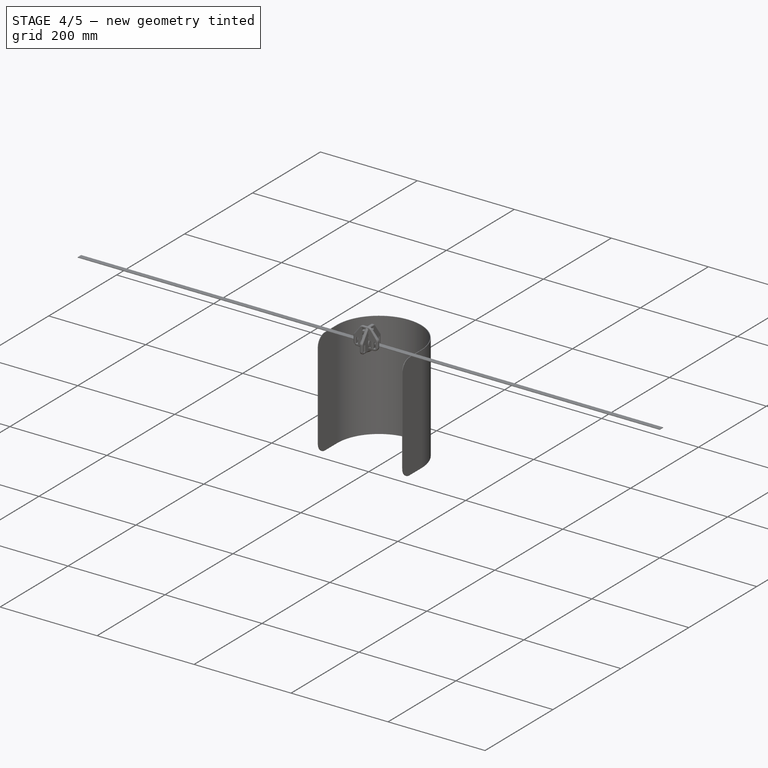
[diagram: stage 4 of 5 — iso view after this stage's code; geometry added in this stage tinted green]
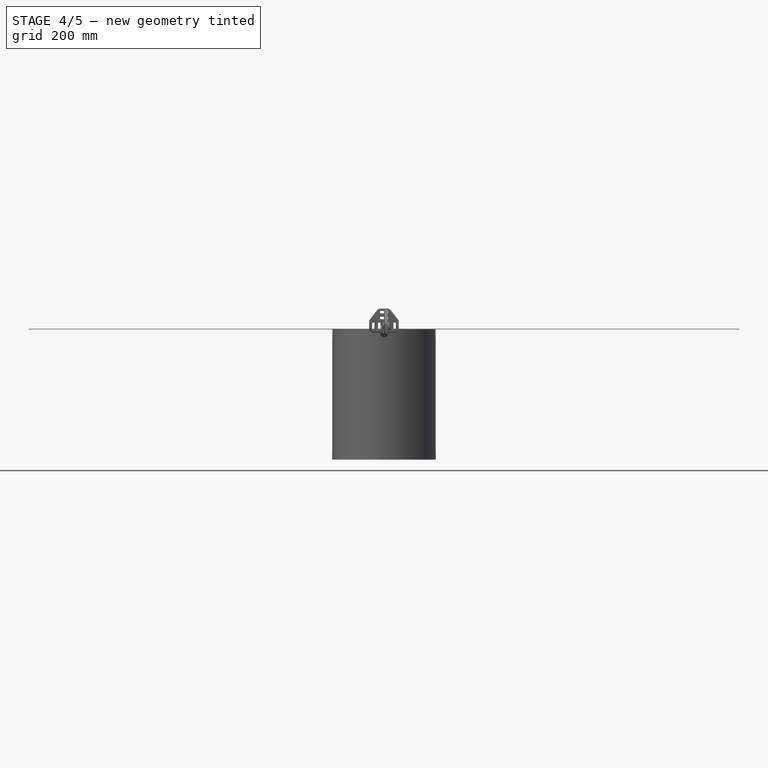
[diagram: stage 4 of 5 — front view after this stage's code; geometry added in this stage tinted green]
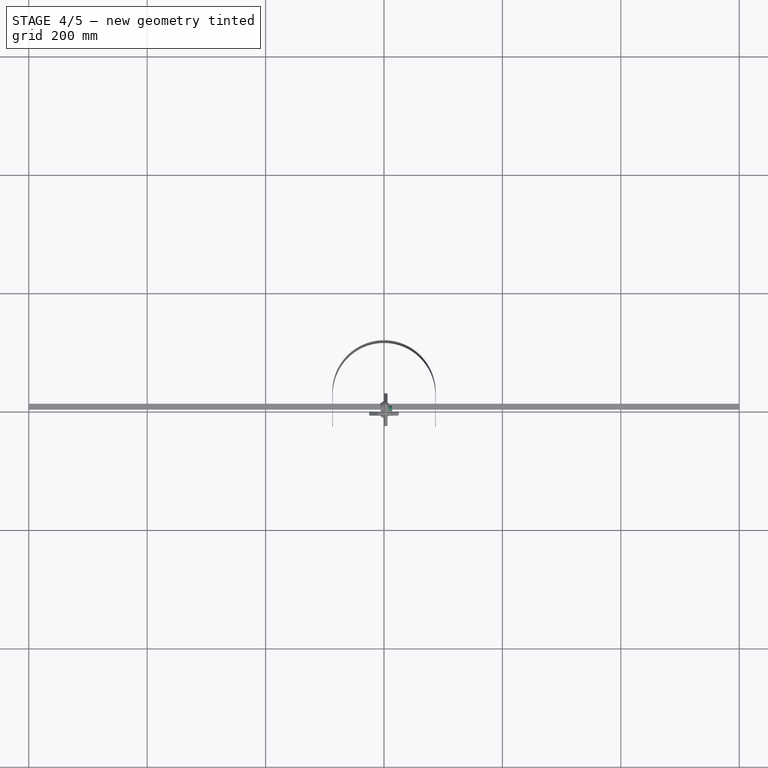
[diagram: stage 4 of 5 — top view after this stage's code; geometry added in this stage tinted green]
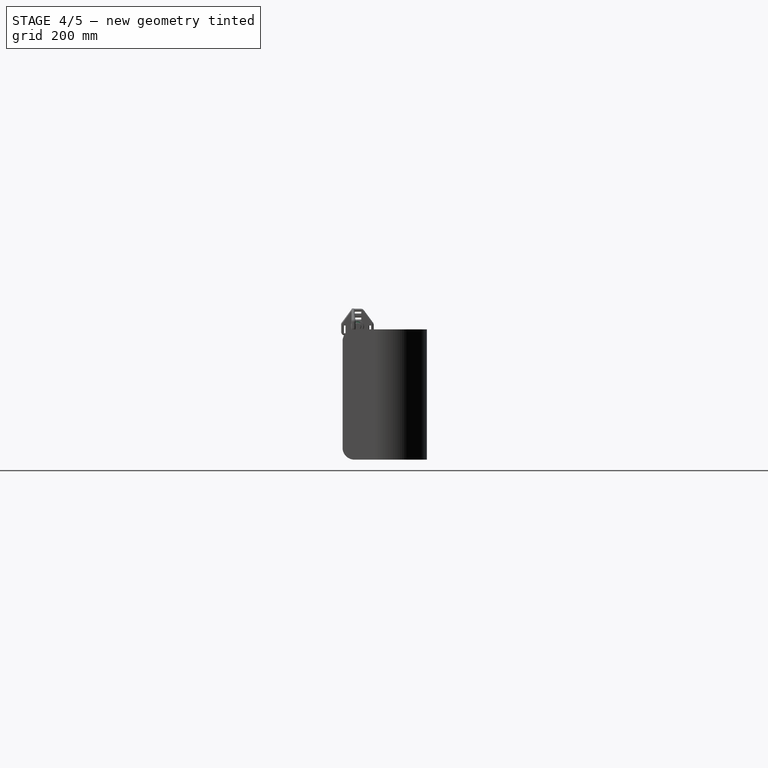
[diagram: stage 4 of 5 — right view after this stage's code; geometry added in this stage tinted green]
FEATURE [Sketcher::SketchObject] Sketch029
  ExternalGeometry = -> [Pocket008]
  MapMode = 5
  Placement = pos=(14,-9.1e-15,7.8e-15) rot=(0.57735,0.57735,0.57735;2.0944rad)
  Support = -> [Pocket008]
  sketch-geometry (2):
    g0: Circle CenterX=0 CenterY=5 CenterZ=0 NormalX=0 NormalY=0 NormalZ=1 AngleXU=0 Radius=6.5
    g1: Circle CenterX=0 CenterY=5 CenterZ=0 NormalX=0 NormalY=0 NormalZ=1 AngleXU=0 Radius=11.5306
  constraints (3):
    c: Coincident(g0,g-3)
    c: Coincident(g1,g0)
    c: Radius(g0) = 6.5
FEATURE [PartDesign::Pocket] Pocket009
  BaseFeature = -> Pocket008
  Length = 6
  Length2 = 100
  Placement = pos=(0,0,0) rot=(0.57735,0.57735,0.57735;2.0944rad)
  Profile = -> Sketch029
  Type = 0
FEATURE [Sketcher::SketchObject] Sketch030
  ExternalGeometry = -> [Pocket009]
  MapMode = 5
  Placement = pos=(0,0,0) rot=(0.57735,0.57735,-0.57735;4.18879rad)
  Support = -> [Pocket009]
  sketch-geometry (7):
    g0: LineSegment StartX=2.33827 StartY=-0.95 StartZ=0 EndX=-2.33827 EndY=-0.95 EndZ=0
    g1: LineSegment StartX=-2.33827 StartY=-0.95 StartZ=0 EndX=-4.67654 EndY=-5 EndZ=0
    g2: LineSegment StartX=-4.67654 StartY=-5 StartZ=0 EndX=-2.33827 EndY=-9.05 EndZ=0
    g3: LineSegment StartX=-2.33827 StartY=-9.05 StartZ=0 EndX=2.33827 EndY=-9.05 EndZ=0
    g4: LineSegment StartX=2.33827 StartY=-9.05 StartZ=0 EndX=4.67654 EndY=-5 EndZ=0
    g5: LineSegment StartX=4.67654 StartY=-5 StartZ=0 EndX=2.33827 EndY=-0.95 EndZ=0
    g6: Circle [constr] CenterX=-5.4e-15 CenterY=-5 CenterZ=0 NormalX=0 NormalY=0 NormalZ=1 AngleXU=0 Radius=4.67654
  constraints (16):
    c: Coincident(g0,g1)
    c: Coincident(g1,g2)
    c: Coincident(g2,g3)
    c: Coincident(g3,g4)
    c: Coincident(g4,g5)
    c: Coincident(g5,g0)
    c: Equal(g0, g1-g5) x5
    c: PointOnObject(g0,g6)
    c: PointOnObject(g1,g6)
    c: PointOnObject(g2,g6)
    c: PointOnObject(g3,g6)
    c: PointOnObject(g4,g6)
    c: PointOnObject(g5,g6)
    c: Coincident(g6,g-3)
    c: Distance(g0,g4) = 8.1
    c: Horizontal(g0)
FEATURE [PartDesign::Pocket] Pocket010
  BaseFeature = -> Pocket009
  Length = 4.5
  Length2 = 100
  Placement = pos=(0,0,0) rot=(0.57735,0.57735,0.57735;2.0944rad)
  Profile = -> Sketch030
  Type = 0
FEATURE [PartDesign::Fillet] Fillet004  label="Fillet005"
  Base = -> Pocket010 [Edge8,Edge57,Edge2,Edge1,Edge56,Edge5]
  BaseFeature = -> Pocket010
  Placement = pos=(0,0,0) rot=(0.57735,0.57735,0.57735;2.0944rad)
  Radius = 6
FEATURE [PartDesign::Fillet] Fillet005  label="Fillet006"
  Base = -> Fillet004 [Edge43,Edge45,Edge10,Edge8]
  BaseFeature = -> Fillet004
  Placement = pos=(0,0,0) rot=(0.57735,0.57735,0.57735;2.0944rad)
  Radius = 2
FEATURE [PartDesign::Fillet] Fillet006  label="Fillet007"
  Base = -> Fillet005 [Edge74,Edge72,Edge76,Edge78,Edge68,Edge70,Edge80,Edge82,Edge50,Edge49,Edge54,Edge53,Edge45,Edge46,Edge34,Edge37]
  BaseFeature = -> Fillet005
  Placement = pos=(0,0,0) rot=(0.57735,0.57735,0.57735;2.0944rad)
  Radius = 1.5
FEATURE [PartDesign::Fillet] Fillet007  label="Fillet008"
  Base = -> Fillet006 [Edge245,Edge229]
  BaseFeature = -> Fillet006
  Placement = pos=(0,0,0) rot=(0.57735,0.57735,0.57735;2.0944rad)
  Radius = 1
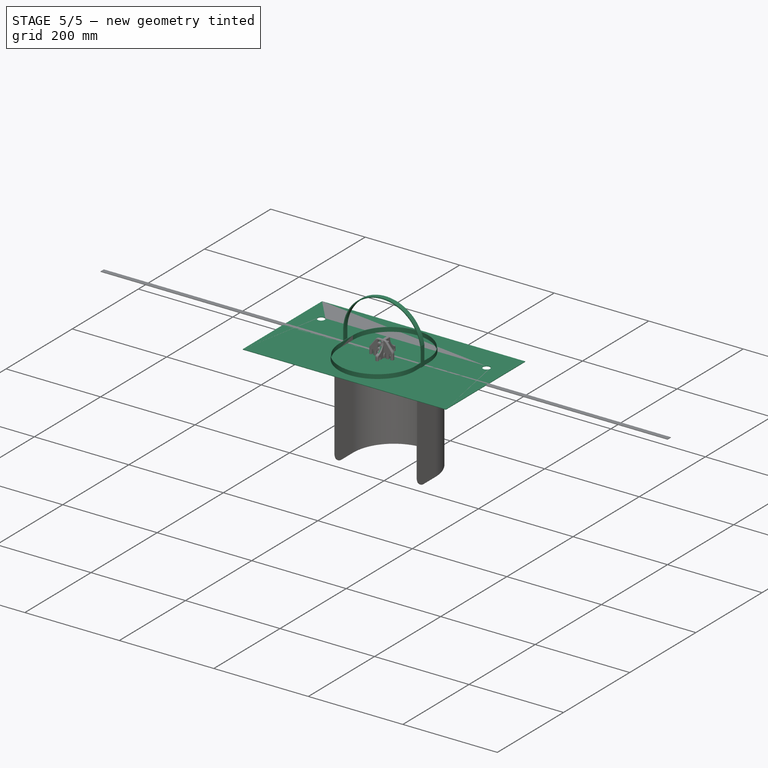
[diagram: stage 5 of 5 — iso view after this stage's code; geometry added in this stage tinted green]
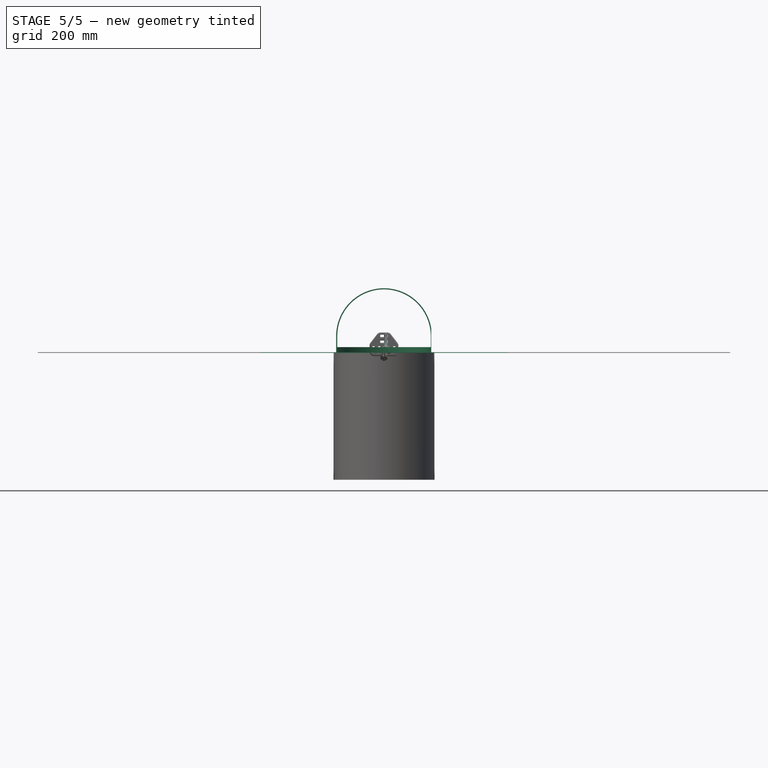
[diagram: stage 5 of 5 — front view after this stage's code; geometry added in this stage tinted green]
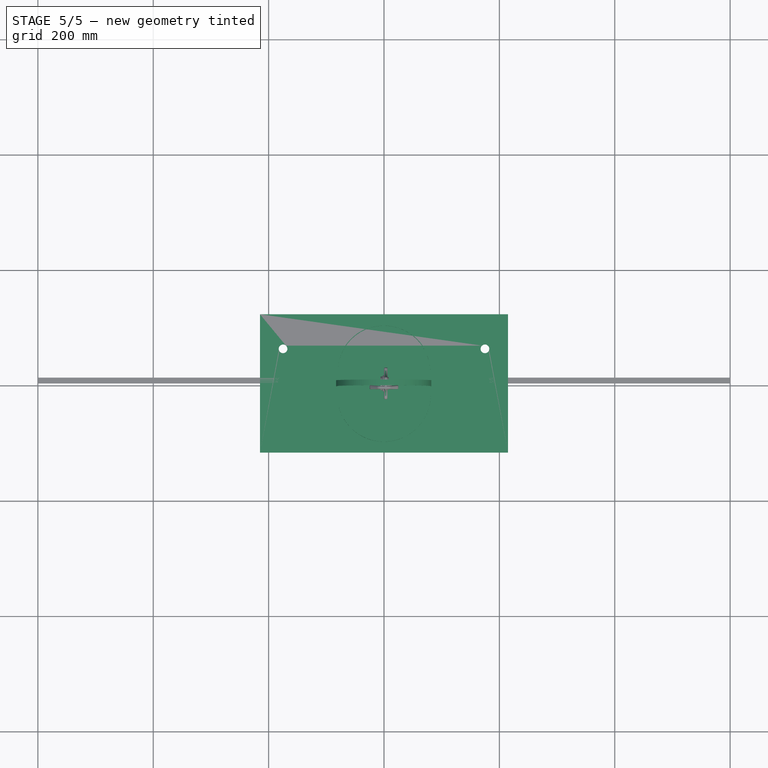
[diagram: stage 5 of 5 — top view after this stage's code; geometry added in this stage tinted green]
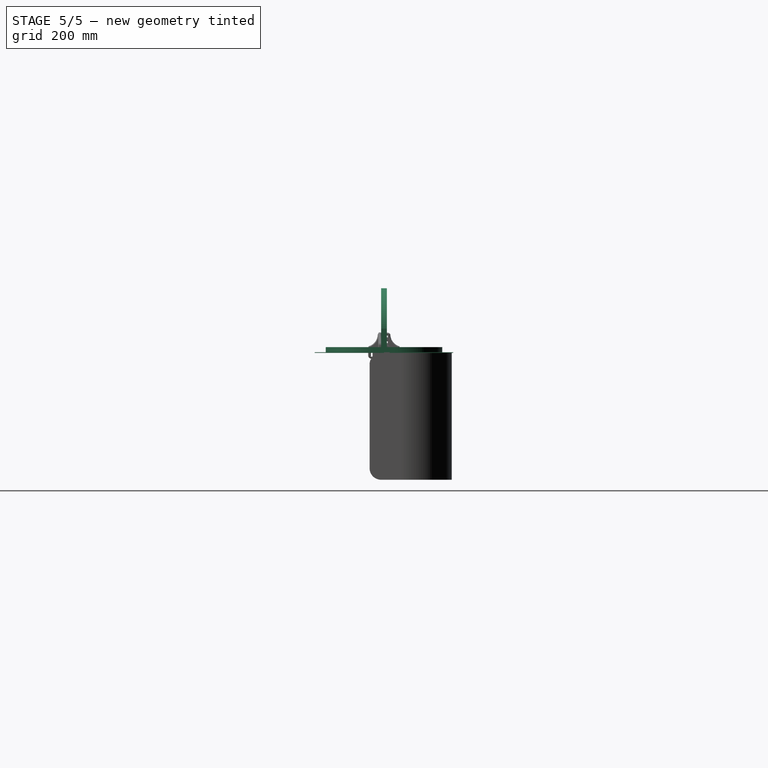
[diagram: stage 5 of 5 — right view after this stage's code; geometry added in this stage tinted green]
FEATURE [Sketcher::SketchObject] Sketch035
  MapMode = 5
  Support = -> [XY_Plane011]
  sketch-geometry (9):
    g0: ArcOfCircle CenterX=0 CenterY=20 CenterZ=0 NormalX=0 NormalY=0 NormalZ=1 AngleXU=0 Radius=80 StartAngle=1e-16 EndAngle=3.14159
    g1: ArcOfCircle CenterX=0 CenterY=-20 CenterZ=0 NormalX=0 NormalY=0 NormalZ=1 AngleXU=0 Radius=80 StartAngle=3.14159 EndAngle=6.28319
    g2: LineSegment StartX=-80 StartY=20 StartZ=0 EndX=-80 EndY=-20 EndZ=0
    g3: LineSegment StartX=80 StartY=20 StartZ=0 EndX=80 EndY=-20 EndZ=0
    g4: LineSegment [constr] StartX=-112.633 StartY=100 StartZ=0 EndX=140.49 EndY=100 EndZ=0
    g5: ArcOfCircle CenterX=0 CenterY=20 CenterZ=0 NormalX=0 NormalY=0 NormalZ=1 AngleXU=0 Radius=81 StartAngle=1e-16 EndAngle=3.14159
    g6: ArcOfCircle CenterX=0 CenterY=-20 CenterZ=0 NormalX=0 NormalY=0 NormalZ=1 AngleXU=0 Radius=81 StartAngle=3.14159 EndAngle=6.28319
    g7: LineSegment StartX=-81 StartY=20 StartZ=0 EndX=-81 EndY=-20 EndZ=0
    g8: LineSegment StartX=81 StartY=20 StartZ=0 EndX=81 EndY=-20 EndZ=0
  constraints (19):
    c: Tangent(g0,g3) = 1.5708
    c: Tangent(g0,g2) = -1.5708
    c: Tangent(g2,g1) = -1.5708
    c: Tangent(g3,g1) = 1.5708
    c: Vertical(g2)
    c: PointOnObject(g0,g-2)
    c: DistanceX(g0) = 80
    c: Symmetric(g0,g1,g-1)
    c: Tangent(g4,g0)
    c: Horizontal(g4)
    c: DistanceY(g4) = 100
    c: Tangent(g5,g8) = 1.5708
    c: Tangent(g5,g7) = -1.5708
    c: Tangent(g7,g6) = -1.5708
    c: Tangent(g8,g6) = 1.5708
    c: Vertical(g7)
    c: Coincident(g5,g0)
    c: Coincident(g6,g1)
    c: DistanceX(g0,g5) = 1
FEATURE [PartDesign::Pad] Pad011
  Length = 10
  Length2 = 100
  Profile = -> Sketch035
  Type = 0
FEATURE [Sketcher::SketchObject] Sketch036
  MapMode = 5
  Placement = pos=(0,0,0) rot=(1,0,0;1.5708rad)
  Support = -> [XZ_Plane012]
  sketch-geometry (9):
    g0: ArcOfCircle CenterX=0 CenterY=29 CenterZ=0 NormalX=0 NormalY=0 NormalZ=1 AngleXU=0 Radius=81 StartAngle=1e-16 EndAngle=3.14159
    g1: LineSegment StartX=81 StartY=29 StartZ=0 EndX=81 EndY=0 EndZ=0
    g2: LineSegment StartX=81 StartY=0 StartZ=0 EndX=81.9832 EndY=0 EndZ=0
    g3: LineSegment StartX=81.9832 StartY=0 StartZ=0 EndX=81.9832 EndY=41.9521 EndZ=0
    g4: LineSegment StartX=-81 StartY=29 StartZ=0 EndX=-81 EndY=0 EndZ=0
    g5: LineSegment StartX=-81 StartY=0 StartZ=0 EndX=-83 EndY=0 EndZ=0
    g6: LineSegment StartX=-83 StartY=0 StartZ=0 EndX=-83 EndY=29 EndZ=0
    g7: ArcOfCircle CenterX=0 CenterY=29 CenterZ=0 NormalX=0 NormalY=0 NormalZ=1 AngleXU=0 Radius=83 StartAngle=0.15669 EndAngle=3.14159
    g8: LineSegment [constr] StartX=-130.753 StartY=110 StartZ=0 EndX=110.653 EndY=110 EndZ=0
  constraints (23):
    c: PointOnObject(g0,g-2)
    c: Coincident(g2,g1)
    c: Horizontal(g2)
    c: Coincident(g3,g2)
    c: Vertical(g3)
    c: Coincident(g4,g0)
    c: Vertical(g4)
    c: Coincident(g5,g4)
    c: Horizontal(g5)
    c: Coincident(g6,g5)
    c: Vertical(g6)
    c: Coincident(g7,g0)
    c: Vertical(g1)
    c: PointOnObject(g2,g-1)
    c: Symmetric(g1,g4,g-2)
    c: Coincident(g7,g3)
    c: Tangent(g7,g6) = 1.5708
    c: DistanceX(g4) = -81
    c: DistanceX(g5,g5) = 2
    c: Tangent(g0,g1) = 1.5708
    c: Horizontal(g8)
    c: Tangent(g8,g0)
    c: DistanceY(g8) = 110
FEATURE [PartDesign::Pad] Pad012
  BaseFeature = -> Pad011
  Length = 10
  Length2 = 100
  Midplane = true
  Profile = -> Sketch036
  Type = 0
FEATURE [PartDesign::Body] Body011  label="Tiras_Policarbonato1x10 (PLACEHOLDER)"
  Group = -> [Sketch035,Pad011,Sketch036,Pad012]
  Origin = -> Origin011
  Tip = -> Pad012
FEATURE [Sketcher::SketchObject] Sketch
  MapMode = 5
  Support = -> [XY_Plane]
  sketch-geometry (6):
    g0: LineSegment StartX=-215 StartY=-120 StartZ=0 EndX=215 EndY=-120 EndZ=0
    g1: LineSegment StartX=215 StartY=-120 StartZ=0 EndX=215 EndY=120 EndZ=0
    g2: LineSegment StartX=215 StartY=120 StartZ=0 EndX=-215 EndY=120 EndZ=0
    g3: LineSegment StartX=-215 StartY=120 StartZ=0 EndX=-215 EndY=-120 EndZ=0
    g4: Circle CenterX=-175 CenterY=60 CenterZ=0 NormalX=0 NormalY=0 NormalZ=1 AngleXU=0 Radius=7.5
    g5: Circle CenterX=175 CenterY=60 CenterZ=0 NormalX=0 NormalY=0 NormalZ=1 AngleXU=0 Radius=7.5
  constraints (15):
    c: Coincident(g0,g1)
    c: Coincident(g1,g2)
    c: Coincident(g2,g3)
    c: Coincident(g3,g0)
    c: Horizontal(g0)
    c: Vertical(g1)
    c: Symmetric(g1,g2,g-2)
    c: Symmetric(g2,g0,g-1)
    c: DistanceY(g3,g3) = 240
    c: DistanceX(g2,g2) = 430
    c: Symmetric(g5,g4,g-2)
    c: DistanceX(g2,g4) = 40
    c: DistanceY(g4,g2) = 60
    c: Equal(g4,g5)
    c: Radius(g4) = 7.5
FEATURE [PartDesign::Pad] Pad
  Length = 1
  Length2 = 100
  Profile = -> Sketch
  Type = 0
FEATURE [Sketcher::SketchObject] Sketch046
  ExternalGeometry = -> [Fillet007]
  MapMode = 5
  Placement = pos=(6,-1.3e-15,1.3e-15) rot=(0.57735,0.57735,0.57735;2.0944rad)
  Support = -> [Fillet007]
  sketch-geometry (4):
    g0: ArcOfCircle CenterX=-32.7357 CenterY=32.5691 CenterZ=0 NormalX=0 NormalY=0 NormalZ=1 AngleXU=0 Radius=21.9368 StartAngle=5.00904 EndAngle=6.28319
    g1: LineSegment [constr] StartX=-10.7989 StartY=32.5691 StartZ=0 EndX=-10.7989 EndY=49.6913 EndZ=0
    g2: LineSegment StartX=-10.7989 StartY=32.5691 StartZ=0 EndX=-47.476 EndY=41.2442 EndZ=0
    g3: LineSegment StartX=-47.476 StartY=41.2442 StartZ=0 EndX=-26.3231 EndY=11.5905 EndZ=0
  constraints (7):
    c: Coincident(g0,g-6)
    c: Coincident(g0,g-5)
    c: Tangent(g1,g0) = -1.5708
    c: Vertical(g1)
    c: Coincident(g2,g0)
    c: Coincident(g3,g2)
    c: Coincident(g3,g0)
FEATURE [PartDesign::Pocket] Pocket016
  BaseFeature = -> Fillet007
  Length = 5
  Length2 = 100
  Placement = pos=(0,0,0) rot=(0.57735,0.57735,0.57735;2.0944rad)
  Profile = -> Sketch046
  Type = 1
FEATURE [PartDesign::Mirrored] Mirrored
  BaseFeature = -> Pocket016
  MirrorPlane = -> XZ_Plane010
  Originals = -> [Pocket016]
  Placement = pos=(0,0,0) rot=(0.57735,0.57735,0.57735;2.0944rad)
FEATURE [PartDesign::Fillet] Fillet012  label="Fillet013"
  Base = -> Mirrored [Edge15,Edge78,Edge92,Edge21]
  BaseFeature = -> Mirrored
  Placement = pos=(0,0,0) rot=(0.57735,0.57735,0.57735;2.0944rad)
  Radius = 2
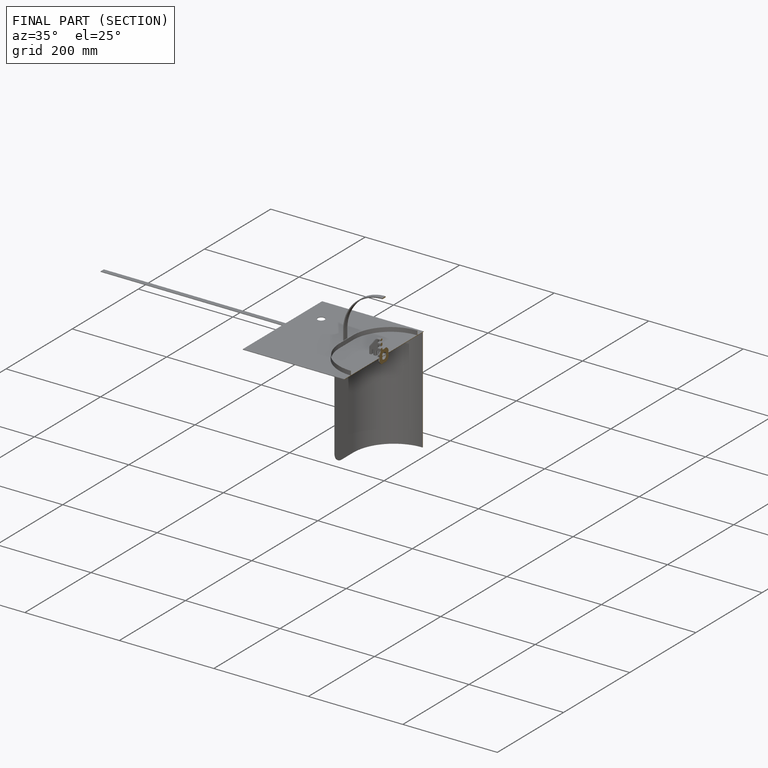
[diagram: finished part — half-section view (interior)]
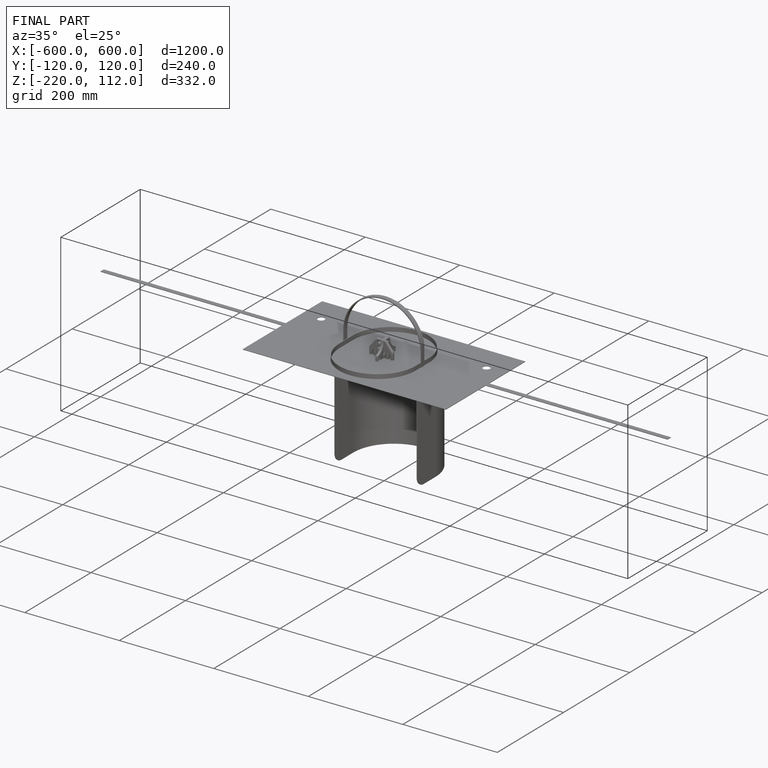
[diagram: finished part — iso view with bounding-box wireframe]
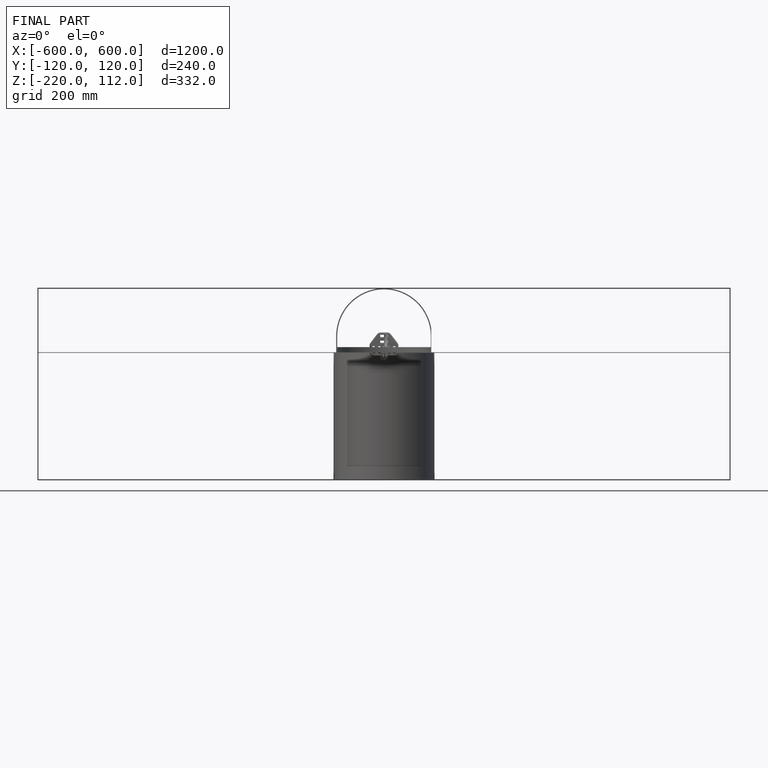
[diagram: finished part — front view with bounding-box wireframe]
